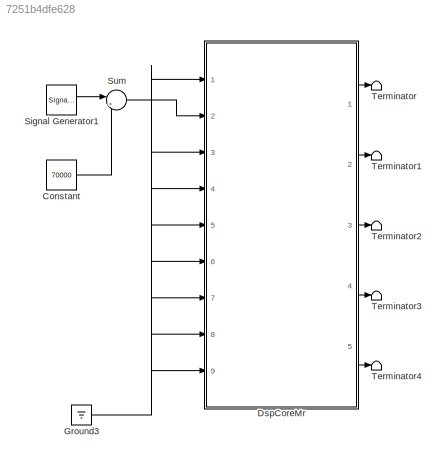
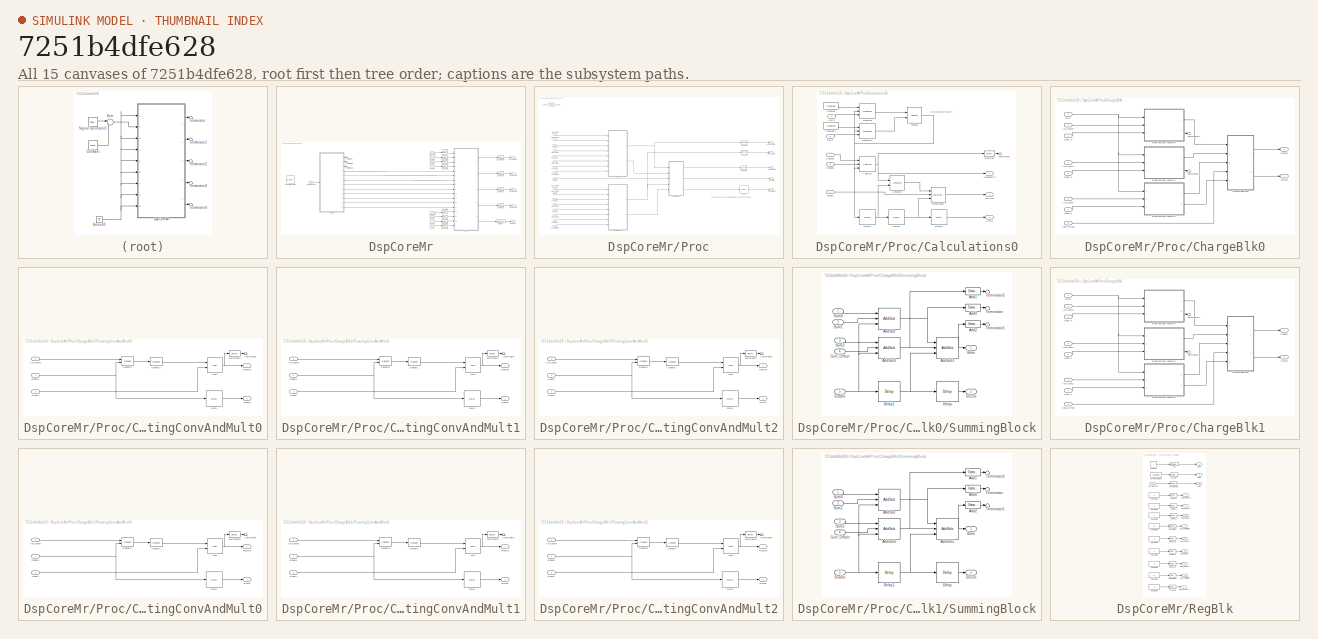
[diagram: thumbnail index - all 15 canvases of the model, root first then tree order]
MODEL slx_7251b4dfe628
KIND model
CONFIG AbsTol = auto
CONFIG FixedStep = auto
CONFIG MaxStep = 10e-6
CONFIG MinStep = auto
CONFIG RelTol = 1e-3
CONFIG SampleTimeConstraint = Unconstrained
CONFIG Solver = ode45
CONFIG SolverMode = Auto
CONFIG SolverName = ode45
CONFIG StartTime = 0.0
CONFIG StopTime = 1
BLOCK [Constant] Constant
  Value = 70000
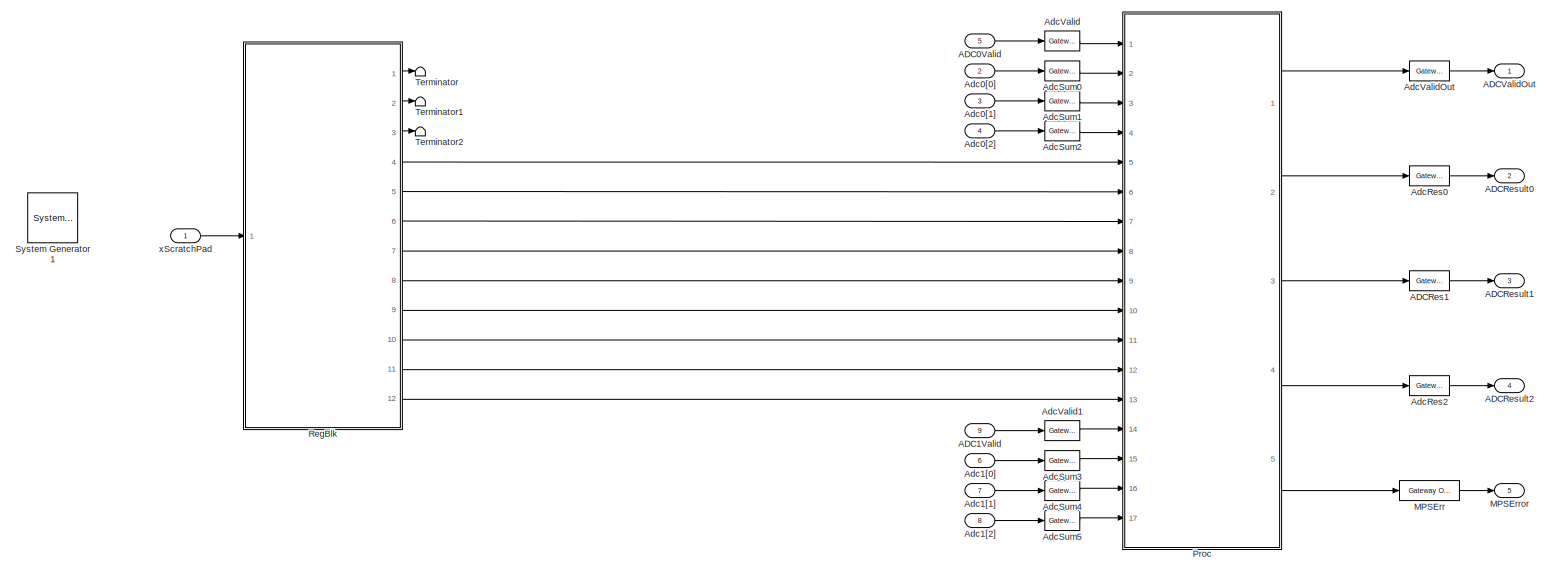
[diagram: DspCoreMr - part 1/1, most of the canvas]
BLOCK [SubSystem] DspCoreMr
  Ports = [9, 5]
  RequestExecContextInheritance = off
  Variant = off
BLOCK [Reference] DspCoreMr/ System Generator1  REF=xbsIndex_r4/ System Generator
  AttributesFormatString = System\nGenerator
  Ports = []
  SourceBlock = xbsIndex_r4/ System Generator
  SourceType = Xilinx System Generator Block
  Tag = genX
  UserDataPersistent = on
BLOCK [Inport] DspCoreMr/ADC0Valid
  IconDisplay = Port number
  Port = 5
BLOCK [Inport] DspCoreMr/ADC1Valid
  IconDisplay = Port number
  Port = 9
BLOCK [Reference] DspCoreMr/ADCRes1  REF=xbsIndex_r4/Gateway Out
  Ports = [1, 1]
  SourceBlock = xbsIndex_r4/Gateway Out
  SourceType = Xilinx Gateway Out Block
BLOCK [Outport] DspCoreMr/ADCResult0
  IconDisplay = Port number
  Port = 2
BLOCK [Outport] DspCoreMr/ADCResult1
  IconDisplay = Port number
  Port = 3
BLOCK [Outport] DspCoreMr/ADCResult2
  IconDisplay = Port number
  Port = 4
BLOCK [Outport] DspCoreMr/ADCValidOut
  IconDisplay = Port number
BLOCK [Inport] DspCoreMr/Adc0[0]
  IconDisplay = Port number
  Port = 2
BLOCK [Inport] DspCoreMr/Adc0[1]
  IconDisplay = Port number
  Port = 3
BLOCK [Inport] DspCoreMr/Adc0[2]
  IconDisplay = Port number
  Port = 4
BLOCK [Inport] DspCoreMr/Adc1[0]
  IconDisplay = Port number
  Port = 6
BLOCK [Inport] DspCoreMr/Adc1[1]
  IconDisplay = Port number
  Port = 7
BLOCK [Inport] DspCoreMr/Adc1[2]
  IconDisplay = Port number
  Port = 8
BLOCK [Reference] DspCoreMr/AdcRes0  REF=xbsIndex_r4/Gateway Out
  Ports = [1, 1]
  SourceBlock = xbsIndex_r4/Gateway Out
  SourceType = Xilinx Gateway Out Block
BLOCK [Reference] DspCoreMr/AdcRes2  REF=xbsIndex_r4/Gateway Out
  Ports = [1, 1]
  SourceBlock = xbsIndex_r4/Gateway Out
  SourceType = Xilinx Gateway Out Block
BLOCK [Reference] DspCoreMr/AdcSum0  REF=xbsIndex_r4/Gateway In
  Ports = [1, 1]
  SourceBlock = xbsIndex_r4/Gateway In
  SourceType = Xilinx Gateway In Block
BLOCK [Reference] DspCoreMr/AdcSum1  REF=xbsIndex_r4/Gateway In
  Ports = [1, 1]
  SourceBlock = xbsIndex_r4/Gateway In
  SourceType = Xilinx Gateway In Block
BLOCK [Reference] DspCoreMr/AdcSum2  REF=xbsIndex_r4/Gateway In
  Ports = [1, 1]
  SourceBlock = xbsIndex_r4/Gateway In
  SourceType = Xilinx Gateway In Block
BLOCK [Reference] DspCoreMr/AdcSum3  REF=xbsIndex_r4/Gateway In
  Ports = [1, 1]
  SourceBlock = xbsIndex_r4/Gateway In
  SourceType = Xilinx Gateway In Block
BLOCK [Reference] DspCoreMr/AdcSum4  REF=xbsIndex_r4/Gateway In
  Ports = [1, 1]
  SourceBlock = xbsIndex_r4/Gateway In
  SourceType = Xilinx Gateway In Block
BLOCK [Reference] DspCoreMr/AdcSum5  REF=xbsIndex_r4/Gateway In
  Ports = [1, 1]
  SourceBlock = xbsIndex_r4/Gateway In
  SourceType = Xilinx Gateway In Block
BLOCK [Reference] DspCoreMr/AdcValid  REF=xbsIndex_r4/Gateway In
  Ports = [1, 1]
  SourceBlock = xbsIndex_r4/Gateway In
  SourceType = Xilinx Gateway In Block
BLOCK [Reference] DspCoreMr/AdcValid1  REF=xbsIndex_r4/Gateway In
  Ports = [1, 1]
  SourceBlock = xbsIndex_r4/Gateway In
  SourceType = Xilinx Gateway In Block
BLOCK [Reference] DspCoreMr/AdcValidOut  REF=xbsIndex_r4/Gateway Out
  Ports = [1, 1]
  SourceBlock = xbsIndex_r4/Gateway Out
  SourceType = Xilinx Gateway Out Block
BLOCK [Reference] DspCoreMr/MPSErr  REF=xbsIndex_r4/Gateway Out
  Ports = [1, 1]
  SourceBlock = xbsIndex_r4/Gateway Out
  SourceType = Xilinx Gateway Out Block
BLOCK [Outport] DspCoreMr/MPSError
  IconDisplay = Port number
  Port = 5
BLOCK [SubSystem] DspCoreMr/Proc
  Ports = [17, 5]
  RequestExecContextInheritance = off
  Variant = off
BLOCK [Inport] DspCoreMr/Proc/ADC0Valid
  IconDisplay = Port number
BLOCK [Inport] DspCoreMr/Proc/ADC0sum0
  IconDisplay = Port number
  Port = 2
BLOCK [Inport] DspCoreMr/Proc/ADC0sum1
  IconDisplay = Port number
  Port = 3
BLOCK [Inport] DspCoreMr/Proc/ADC0sum2
  IconDisplay = Port number
  Port = 4
BLOCK [Inport] DspCoreMr/Proc/ADC1Valid1
  IconDisplay = Port number
  Port = 14
BLOCK [Inport] DspCoreMr/Proc/ADC1sum0 
  IconDisplay = Port number
  Port = 15
BLOCK [Inport] DspCoreMr/Proc/ADC1sum1
  IconDisplay = Port number
  Port = 16
BLOCK [Inport] DspCoreMr/Proc/ADC1sum2
  IconDisplay = Port number
  Port = 17
BLOCK [Outport] DspCoreMr/Proc/ADCResult[0]
  IconDisplay = Port number
  Port = 2
BLOCK [Outport] DspCoreMr/Proc/ADCResult[1]
  IconDisplay = Port number
  Port = 3
BLOCK [Outport] DspCoreMr/Proc/ADCResult[2]
  IconDisplay = Port number
  Port = 4
BLOCK [Outport] DspCoreMr/Proc/ADCValidOut
  IconDisplay = Port number
BLOCK [SubSystem] DspCoreMr/Proc/Calculations0
  Ports = [5, 3]
  RequestExecContextInheritance = off
  Variant = off
BLOCK [Reference] DspCoreMr/Proc/Calculations0/Absolute  REF=xbsIndex_r4/Absolute
  Ports = [2, 1]
  SourceBlock = xbsIndex_r4/Absolute
  SourceType = Xilinx Absolute Block Block
BLOCK [Reference] DspCoreMr/Proc/Calculations0/AddSub  REF=xbsIndex_r4/AddSub
  Ports = [3, 1]
  SourceBlock = xbsIndex_r4/AddSub
  SourceType = Xilinx Adder/Subtracter Block
BLOCK [Inport] DspCoreMr/Proc/Calculations0/Charge0
  IconDisplay = Port number
BLOCK [Inport] DspCoreMr/Proc/Calculations0/Charge1
  IconDisplay = Port number
  Port = 4
BLOCK [Outport] DspCoreMr/Proc/Calculations0/ChargeDiff
  IconDisplay = Port number
BLOCK [Reference] DspCoreMr/Proc/Calculations0/Constant  REF=xbsIndex_r4/Constant
  Ports = [0, 1]
  SourceBlock = xbsIndex_r4/Constant
  SourceType = Xilinx Constant Block Block
BLOCK [Reference] DspCoreMr/Proc/Calculations0/Constant1  REF=xbsIndex_r4/Constant
  Ports = [0, 1]
  SourceBlock = xbsIndex_r4/Constant
  SourceType = Xilinx Constant Block Block
BLOCK [Reference] DspCoreMr/Proc/Calculations0/Delay1  REF=xbsIndex_r4/Delay
  Ports = [1, 1]
  SourceBlock = xbsIndex_r4/Delay
  SourceType = Xilinx Delay Block
BLOCK [Reference] DspCoreMr/Proc/Calculations0/Delay2  REF=xbsIndex_r4/Delay
  Ports = [1, 1]
  SourceBlock = xbsIndex_r4/Delay
  SourceType = Xilinx Delay Block
BLOCK [Reference] DspCoreMr/Proc/Calculations0/Delay3  REF=xbsIndex_r4/Delay
  Ports = [1, 1]
  SourceBlock = xbsIndex_r4/Delay
  SourceType = Xilinx Delay Block
BLOCK [Outport] DspCoreMr/Proc/Calculations0/EnOut
  IconDisplay = Port number
  Port = 3
BLOCK [Inport] DspCoreMr/Proc/Calculations0/EnP0
  IconDisplay = Port number
  Port = 2
BLOCK [Inport] DspCoreMr/Proc/Calculations0/EnP1
  IconDisplay = Port number
  Port = 5
BLOCK [Reference] DspCoreMr/Proc/Calculations0/Logical  REF=xbsIndex_r4/Logical
  Ports = [2, 1]
  SourceBlock = xbsIndex_r4/Logical
  SourceType = Xilinx Logical Block Block
BLOCK [Outport] DspCoreMr/Proc/Calculations0/MPSout
  IconDisplay = Port number
  Port = 2
BLOCK [Reference] DspCoreMr/Proc/Calculations0/Register  REF=xbsIndex_r4/Register
  Ports = [3, 1]
  SourceBlock = xbsIndex_r4/Register
  SourceType = Xilinx Register Block
BLOCK [Reference] DspCoreMr/Proc/Calculations0/Register1  REF=xbsIndex_r4/Register
  Ports = [3, 1]
  SourceBlock = xbsIndex_r4/Register
  SourceType = Xilinx Register Block
BLOCK [Reference] DspCoreMr/Proc/Calculations0/Relational1  REF=xbsIndex_r4/Relational
  Ports = [3, 1]
  SourceBlock = xbsIndex_r4/Relational
  SourceType = Xilinx Arithmetic Relational Operator Block
BLOCK [Reference] DspCoreMr/Proc/Calculations0/SumReg  REF=xbsIndex_r4/Gateway Out
  Ports = [1, 1]
  SourceBlock = xbsIndex_r4/Gateway Out
  SourceType = Xilinx Gateway Out Block
BLOCK [Terminator] DspCoreMr/Proc/Calculations0/Terminator
BLOCK [Inport] DspCoreMr/Proc/Calculations0/Thresh
  IconDisplay = Port number
  Port = 3
BLOCK [SubSystem] DspCoreMr/Proc/ChargeBlk0
  Ports = [8, 2]
  RequestExecContextInheritance = off
  Variant = off
BLOCK [Inport] DspCoreMr/Proc/ChargeBlk0/ADCsum0
  IconDisplay = Port number
  Port = 2
BLOCK [Inport] DspCoreMr/Proc/ChargeBlk0/ADCsum1
  IconDisplay = Port number
  Port = 4
BLOCK [Inport] DspCoreMr/Proc/ChargeBlk0/ADCsum2
  IconDisplay = Port number
  Port = 6
BLOCK [Outport] DspCoreMr/Proc/ChargeBlk0/Charge
  IconDisplay = Port number
BLOCK [Inport] DspCoreMr/Proc/ChargeBlk0/CoefA0
  IconDisplay = Port number
  Port = 3
BLOCK [Inport] DspCoreMr/Proc/ChargeBlk0/CoefA1
  IconDisplay = Port number
  Port = 5
BLOCK [Inport] DspCoreMr/Proc/ChargeBlk0/CoefA2
  IconDisplay = Port number
  Port = 7
BLOCK [Inport] DspCoreMr/Proc/ChargeBlk0/Coef_Offset
  IconDisplay = Port number
  Port = 8
BLOCK [Inport] DspCoreMr/Proc/ChargeBlk0/EnIn
  IconDisplay = Port number
BLOCK [Outport] DspCoreMr/Proc/ChargeBlk0/EnOut
  IconDisplay = Port number
  Port = 2
BLOCK [SubSystem] DspCoreMr/Proc/ChargeBlk0/FloatingConvAndMult0
  Ports = [3, 2]
  RequestExecContextInheritance = off
  Variant = off
BLOCK [Inport] DspCoreMr/Proc/ChargeBlk0/FloatingConvAndMult0/ADCsum0
  IconDisplay = Port number
  Port = 2
BLOCK [Reference] DspCoreMr/Proc/ChargeBlk0/FloatingConvAndMult0/Convert0  REF=xbsIndex_r4/Convert
  Ports = [2, 1]
  SourceBlock = xbsIndex_r4/Convert
  SourceType = Xilinx Type Converter Block
BLOCK [Reference] DspCoreMr/Proc/ChargeBlk0/FloatingConvAndMult0/Convert1  REF=xbsIndex_r4/Convert
  Ports = [1, 1]
  SourceBlock = xbsIndex_r4/Convert
  SourceType = Xilinx Type Converter Block
BLOCK [Reference] DspCoreMr/Proc/ChargeBlk0/FloatingConvAndMult0/Delay  REF=xbsIndex_r4/Delay
  Ports = [1, 1]
  SourceBlock = xbsIndex_r4/Delay
  SourceType = Xilinx Delay Block
BLOCK [Outport] DspCoreMr/Proc/ChargeBlk0/FloatingConvAndMult0/EnOut
  IconDisplay = Port number
  Port = 2
BLOCK [Inport] DspCoreMr/Proc/ChargeBlk0/FloatingConvAndMult0/Enable
  IconDisplay = Port number
  SampleTime = 5.385E-9
BLOCK [Reference] DspCoreMr/Proc/ChargeBlk0/FloatingConvAndMult0/Mult  REF=xbsIndex_r4/Mult
  Ports = [2, 1]
  SourceBlock = xbsIndex_r4/Mult
  SourceType = Xilinx Multiplier Block
BLOCK [Reference] DspCoreMr/Proc/ChargeBlk0/FloatingConvAndMult0/MultResult  REF=xbsIndex_r4/Gateway Out
  Ports = [1, 1]
  SourceBlock = xbsIndex_r4/Gateway Out
  SourceType = Xilinx Gateway Out Block
BLOCK [Outport] DspCoreMr/Proc/ChargeBlk0/FloatingConvAndMult0/ResOut
  IconDisplay = Port number
BLOCK [Inport] DspCoreMr/Proc/ChargeBlk0/FloatingConvAndMult0/ScoefA
  IconDisplay = Port number
  Port = 3
  SampleTime = 5.385E-9
BLOCK [Terminator] DspCoreMr/Proc/ChargeBlk0/FloatingConvAndMult0/Terminator
BLOCK [SubSystem] DspCoreMr/Proc/ChargeBlk0/FloatingConvAndMult1
  Ports = [3, 2]
  RequestExecContextInheritance = off
  Variant = off
BLOCK [Inport] DspCoreMr/Proc/ChargeBlk0/FloatingConvAndMult1/ADCsum0
  IconDisplay = Port number
  Port = 2
BLOCK [Reference] DspCoreMr/Proc/ChargeBlk0/FloatingConvAndMult1/Convert0  REF=xbsIndex_r4/Convert
  Ports = [2, 1]
  SourceBlock = xbsIndex_r4/Convert
  SourceType = Xilinx Type Converter Block
BLOCK [Reference] DspCoreMr/Proc/ChargeBlk0/FloatingConvAndMult1/Convert1  REF=xbsIndex_r4/Convert
  Ports = [1, 1]
  SourceBlock = xbsIndex_r4/Convert
  SourceType = Xilinx Type Converter Block
BLOCK [Reference] DspCoreMr/Proc/ChargeBlk0/FloatingConvAndMult1/Delay  REF=xbsIndex_r4/Delay
  Ports = [1, 1]
  SourceBlock = xbsIndex_r4/Delay
  SourceType = Xilinx Delay Block
BLOCK [Outport] DspCoreMr/Proc/ChargeBlk0/FloatingConvAndMult1/EnOut
  IconDisplay = Port number
  Port = 2
BLOCK [Inport] DspCoreMr/Proc/ChargeBlk0/FloatingConvAndMult1/Enable
  IconDisplay = Port number
  SampleTime = 5.385E-9
BLOCK [Reference] DspCoreMr/Proc/ChargeBlk0/FloatingConvAndMult1/Mult  REF=xbsIndex_r4/Mult
  Ports = [2, 1]
  SourceBlock = xbsIndex_r4/Mult
  SourceType = Xilinx Multiplier Block
BLOCK [Reference] DspCoreMr/Proc/ChargeBlk0/FloatingConvAndMult1/MultResult  REF=xbsIndex_r4/Gateway Out
  Ports = [1, 1]
  SourceBlock = xbsIndex_r4/Gateway Out
  SourceType = Xilinx Gateway Out Block
BLOCK [Outport] DspCoreMr/Proc/ChargeBlk0/FloatingConvAndMult1/ResOut
  IconDisplay = Port number
BLOCK [Inport] DspCoreMr/Proc/ChargeBlk0/FloatingConvAndMult1/ScoefA
  IconDisplay = Port number
  Port = 3
  SampleTime = 5.385E-9
BLOCK [Terminator] DspCoreMr/Proc/ChargeBlk0/FloatingConvAndMult1/Terminator
BLOCK [SubSystem] DspCoreMr/Proc/ChargeBlk0/FloatingConvAndMult2
  Ports = [3, 2]
  RequestExecContextInheritance = off
  Variant = off
BLOCK [Inport] DspCoreMr/Proc/ChargeBlk0/FloatingConvAndMult2/ADCsum0
  IconDisplay = Port number
  Port = 2
BLOCK [Reference] DspCoreMr/Proc/ChargeBlk0/FloatingConvAndMult2/Convert0  REF=xbsIndex_r4/Convert
  Ports = [2, 1]
  SourceBlock = xbsIndex_r4/Convert
  SourceType = Xilinx Type Converter Block
BLOCK [Reference] DspCoreMr/Proc/ChargeBlk0/FloatingConvAndMult2/Convert1  REF=xbsIndex_r4/Convert
  Ports = [1, 1]
  SourceBlock = xbsIndex_r4/Convert
  SourceType = Xilinx Type Converter Block
BLOCK [Reference] DspCoreMr/Proc/ChargeBlk0/FloatingConvAndMult2/Delay  REF=xbsIndex_r4/Delay
  Ports = [1, 1]
  SourceBlock = xbsIndex_r4/Delay
  SourceType = Xilinx Delay Block
BLOCK [Outport] DspCoreMr/Proc/ChargeBlk0/FloatingConvAndMult2/EnOut
  IconDisplay = Port number
  Port = 2
BLOCK [Inport] DspCoreMr/Proc/ChargeBlk0/FloatingConvAndMult2/Enable
  IconDisplay = Port number
  SampleTime = 5.385E-9
BLOCK [Reference] DspCoreMr/Proc/ChargeBlk0/FloatingConvAndMult2/Mult  REF=xbsIndex_r4/Mult
  Ports = [2, 1]
  SourceBlock = xbsIndex_r4/Mult
  SourceType = Xilinx Multiplier Block
BLOCK [Reference] DspCoreMr/Proc/ChargeBlk0/FloatingConvAndMult2/MultResult  REF=xbsIndex_r4/Gateway Out
  Ports = [1, 1]
  SourceBlock = xbsIndex_r4/Gateway Out
  SourceType = Xilinx Gateway Out Block
BLOCK [Outport] DspCoreMr/Proc/ChargeBlk0/FloatingConvAndMult2/ResOut
  IconDisplay = Port number
BLOCK [Inport] DspCoreMr/Proc/ChargeBlk0/FloatingConvAndMult2/ScoefA
  IconDisplay = Port number
  Port = 3
  SampleTime = 5.385E-9
BLOCK [Terminator] DspCoreMr/Proc/ChargeBlk0/FloatingConvAndMult2/Terminator
BLOCK [SubSystem] DspCoreMr/Proc/ChargeBlk0/SummingBlock
  Ports = [5, 2]
  RequestExecContextInheritance = off
  Variant = off
BLOCK [Reference] DspCoreMr/Proc/ChargeBlk0/SummingBlock/Add0  REF=xbsIndex_r4/Gateway Out
  Ports = [1, 1]
  SourceBlock = xbsIndex_r4/Gateway Out
  SourceType = Xilinx Gateway Out Block
BLOCK [Reference] DspCoreMr/Proc/ChargeBlk0/SummingBlock/Add1  REF=xbsIndex_r4/Gateway Out
  Ports = [1, 1]
  SourceBlock = xbsIndex_r4/Gateway Out
  SourceType = Xilinx Gateway Out Block
BLOCK [Reference] DspCoreMr/Proc/ChargeBlk0/SummingBlock/Add2  REF=xbsIndex_r4/Gateway Out
  Ports = [1, 1]
  SourceBlock = xbsIndex_r4/Gateway Out
  SourceType = Xilinx Gateway Out Block
BLOCK [Reference] DspCoreMr/Proc/ChargeBlk0/SummingBlock/AddSub  REF=xbsIndex_r4/AddSub
  Ports = [3, 1]
  SourceBlock = xbsIndex_r4/AddSub
  SourceType = Xilinx Adder/Subtracter Block
BLOCK [Reference] DspCoreMr/Proc/ChargeBlk0/SummingBlock/AddSub1  REF=xbsIndex_r4/AddSub
  Ports = [3, 1]
  SourceBlock = xbsIndex_r4/AddSub
  SourceType = Xilinx Adder/Subtracter Block
BLOCK [Reference] DspCoreMr/Proc/ChargeBlk0/SummingBlock/AddSub2  REF=xbsIndex_r4/AddSub
  Ports = [3, 1]
  SourceBlock = xbsIndex_r4/AddSub
  SourceType = Xilinx Adder/Subtracter Block
BLOCK [Outport] DspCoreMr/Proc/ChargeBlk0/SummingBlock/Braw
  IconDisplay = Port number
BLOCK [Inport] DspCoreMr/Proc/ChargeBlk0/SummingBlock/Coef_Offset
  IconDisplay = Port number
  Port = 4
BLOCK [Reference] DspCoreMr/Proc/ChargeBlk0/SummingBlock/Delay  REF=xbsIndex_r4/Delay
  Ports = [1, 1]
  SourceBlock = xbsIndex_r4/Delay
  SourceType = Xilinx Delay Block
BLOCK [Reference] DspCoreMr/Proc/ChargeBlk0/SummingBlock/Delay1  REF=xbsIndex_r4/Delay
  Ports = [1, 1]
  SourceBlock = xbsIndex_r4/Delay
  SourceType = Xilinx Delay Block
BLOCK [Outport] DspCoreMr/Proc/ChargeBlk0/SummingBlock/EnOut
  IconDisplay = Port number
  Port = 2
BLOCK [Inport] DspCoreMr/Proc/ChargeBlk0/SummingBlock/Enable
  IconDisplay = Port number
  Port = 5
BLOCK [Inport] DspCoreMr/Proc/ChargeBlk0/SummingBlock/Sum0
  IconDisplay = Port number
BLOCK [Inport] DspCoreMr/Proc/ChargeBlk0/SummingBlock/Sum1
  IconDisplay = Port number
  Port = 2
BLOCK [Inport] DspCoreMr/Proc/ChargeBlk0/SummingBlock/Sum2
  IconDisplay = Port number
  Port = 3
BLOCK [Terminator] DspCoreMr/Proc/ChargeBlk0/SummingBlock/Terminator
BLOCK [Terminator] DspCoreMr/Proc/ChargeBlk0/SummingBlock/Terminator1
BLOCK [Terminator] DspCoreMr/Proc/ChargeBlk0/SummingBlock/Terminator2
BLOCK [Terminator] DspCoreMr/Proc/ChargeBlk0/Terminator1
BLOCK [Terminator] DspCoreMr/Proc/ChargeBlk0/Terminator3
BLOCK [SubSystem] DspCoreMr/Proc/ChargeBlk1
  Ports = [8, 2]
  RequestExecContextInheritance = off
  Variant = off
BLOCK [Inport] DspCoreMr/Proc/ChargeBlk1/ADCsum0
  IconDisplay = Port number
  Port = 2
BLOCK [Inport] DspCoreMr/Proc/ChargeBlk1/ADCsum1
  IconDisplay = Port number
  Port = 4
BLOCK [Inport] DspCoreMr/Proc/ChargeBlk1/ADCsum2
  IconDisplay = Port number
  Port = 6
BLOCK [Outport] DspCoreMr/Proc/ChargeBlk1/Charge
  IconDisplay = Port number
BLOCK [Inport] DspCoreMr/Proc/ChargeBlk1/CoefA0
  IconDisplay = Port number
  Port = 3
BLOCK [Inport] DspCoreMr/Proc/ChargeBlk1/CoefA1
  IconDisplay = Port number
  Port = 5
BLOCK [Inport] DspCoreMr/Proc/ChargeBlk1/CoefA2
  IconDisplay = Port number
  Port = 7
BLOCK [Inport] DspCoreMr/Proc/ChargeBlk1/Coef_Offset
  IconDisplay = Port number
  Port = 8
BLOCK [Inport] DspCoreMr/Proc/ChargeBlk1/EnIn
  IconDisplay = Port number
BLOCK [Outport] DspCoreMr/Proc/ChargeBlk1/EnOut
  IconDisplay = Port number
  Port = 2
BLOCK [SubSystem] DspCoreMr/Proc/ChargeBlk1/FloatingConvAndMult0
  Ports = [3, 2]
  RequestExecContextInheritance = off
  Variant = off
BLOCK [Inport] DspCoreMr/Proc/ChargeBlk1/FloatingConvAndMult0/ADCsum0
  IconDisplay = Port number
  Port = 2
BLOCK [Reference] DspCoreMr/Proc/ChargeBlk1/FloatingConvAndMult0/Convert0  REF=xbsIndex_r4/Convert
  Ports = [2, 1]
  SourceBlock = xbsIndex_r4/Convert
  SourceType = Xilinx Type Converter Block
BLOCK [Reference] DspCoreMr/Proc/ChargeBlk1/FloatingConvAndMult0/Convert1  REF=xbsIndex_r4/Convert
  Ports = [1, 1]
  SourceBlock = xbsIndex_r4/Convert
  SourceType = Xilinx Type Converter Block
BLOCK [Reference] DspCoreMr/Proc/ChargeBlk1/FloatingConvAndMult0/Delay  REF=xbsIndex_r4/Delay
  Ports = [1, 1]
  SourceBlock = xbsIndex_r4/Delay
  SourceType = Xilinx Delay Block
BLOCK [Outport] DspCoreMr/Proc/ChargeBlk1/FloatingConvAndMult0/EnOut
  IconDisplay = Port number
  Port = 2
BLOCK [Inport] DspCoreMr/Proc/ChargeBlk1/FloatingConvAndMult0/Enable
  IconDisplay = Port number
  SampleTime = 5.385E-9
BLOCK [Reference] DspCoreMr/Proc/ChargeBlk1/FloatingConvAndMult0/Mult  REF=xbsIndex_r4/Mult
  Ports = [2, 1]
  SourceBlock = xbsIndex_r4/Mult
  SourceType = Xilinx Multiplier Block
BLOCK [Reference] DspCoreMr/Proc/ChargeBlk1/FloatingConvAndMult0/MultResult  REF=xbsIndex_r4/Gateway Out
  Ports = [1, 1]
  SourceBlock = xbsIndex_r4/Gateway Out
  SourceType = Xilinx Gateway Out Block
BLOCK [Outport] DspCoreMr/Proc/ChargeBlk1/FloatingConvAndMult0/ResOut
  IconDisplay = Port number
BLOCK [Inport] DspCoreMr/Proc/ChargeBlk1/FloatingConvAndMult0/ScoefA
  IconDisplay = Port number
  Port = 3
  SampleTime = 5.385E-9
BLOCK [Terminator] DspCoreMr/Proc/ChargeBlk1/FloatingConvAndMult0/Terminator
BLOCK [SubSystem] DspCoreMr/Proc/ChargeBlk1/FloatingConvAndMult1
  Ports = [3, 2]
  RequestExecContextInheritance = off
  Variant = off
BLOCK [Inport] DspCoreMr/Proc/ChargeBlk1/FloatingConvAndMult1/ADCsum0
  IconDisplay = Port number
  Port = 2
BLOCK [Reference] DspCoreMr/Proc/ChargeBlk1/FloatingConvAndMult1/Convert0  REF=xbsIndex_r4/Convert
  Ports = [2, 1]
  SourceBlock = xbsIndex_r4/Convert
  SourceType = Xilinx Type Converter Block
BLOCK [Reference] DspCoreMr/Proc/ChargeBlk1/FloatingConvAndMult1/Convert1  REF=xbsIndex_r4/Convert
  Ports = [1, 1]
  SourceBlock = xbsIndex_r4/Convert
  SourceType = Xilinx Type Converter Block
BLOCK [Reference] DspCoreMr/Proc/ChargeBlk1/FloatingConvAndMult1/Delay  REF=xbsIndex_r4/Delay
  Ports = [1, 1]
  SourceBlock = xbsIndex_r4/Delay
  SourceType = Xilinx Delay Block
BLOCK [Outport] DspCoreMr/Proc/ChargeBlk1/FloatingConvAndMult1/EnOut
  IconDisplay = Port number
  Port = 2
BLOCK [Inport] DspCoreMr/Proc/ChargeBlk1/FloatingConvAndMult1/Enable
  IconDisplay = Port number
  SampleTime = 5.385E-9
BLOCK [Reference] DspCoreMr/Proc/ChargeBlk1/FloatingConvAndMult1/Mult  REF=xbsIndex_r4/Mult
  Ports = [2, 1]
  SourceBlock = xbsIndex_r4/Mult
  SourceType = Xilinx Multiplier Block
BLOCK [Reference] DspCoreMr/Proc/ChargeBlk1/FloatingConvAndMult1/MultResult  REF=xbsIndex_r4/Gateway Out
  Ports = [1, 1]
  SourceBlock = xbsIndex_r4/Gateway Out
  SourceType = Xilinx Gateway Out Block
BLOCK [Outport] DspCoreMr/Proc/ChargeBlk1/FloatingConvAndMult1/ResOut
  IconDisplay = Port number
BLOCK [Inport] DspCoreMr/Proc/ChargeBlk1/FloatingConvAndMult1/ScoefA
  IconDisplay = Port number
  Port = 3
  SampleTime = 5.385E-9
BLOCK [Terminator] DspCoreMr/Proc/ChargeBlk1/FloatingConvAndMult1/Terminator
BLOCK [SubSystem] DspCoreMr/Proc/ChargeBlk1/FloatingConvAndMult2
  Ports = [3, 2]
  RequestExecContextInheritance = off
  Variant = off
BLOCK [Inport] DspCoreMr/Proc/ChargeBlk1/FloatingConvAndMult2/ADCsum0
  IconDisplay = Port number
  Port = 2
BLOCK [Reference] DspCoreMr/Proc/ChargeBlk1/FloatingConvAndMult2/Convert0  REF=xbsIndex_r4/Convert
  Ports = [2, 1]
  SourceBlock = xbsIndex_r4/Convert
  SourceType = Xilinx Type Converter Block
BLOCK [Reference] DspCoreMr/Proc/ChargeBlk1/FloatingConvAndMult2/Convert1  REF=xbsIndex_r4/Convert
  Ports = [1, 1]
  SourceBlock = xbsIndex_r4/Convert
  SourceType = Xilinx Type Converter Block
BLOCK [Reference] DspCoreMr/Proc/ChargeBlk1/FloatingConvAndMult2/Delay  REF=xbsIndex_r4/Delay
  Ports = [1, 1]
  SourceBlock = xbsIndex_r4/Delay
  SourceType = Xilinx Delay Block
BLOCK [Outport] DspCoreMr/Proc/ChargeBlk1/FloatingConvAndMult2/EnOut
  IconDisplay = Port number
  Port = 2
BLOCK [Inport] DspCoreMr/Proc/ChargeBlk1/FloatingConvAndMult2/Enable
  IconDisplay = Port number
  SampleTime = 5.385E-9
BLOCK [Reference] DspCoreMr/Proc/ChargeBlk1/FloatingConvAndMult2/Mult  REF=xbsIndex_r4/Mult
  Ports = [2, 1]
  SourceBlock = xbsIndex_r4/Mult
  SourceType = Xilinx Multiplier Block
BLOCK [Reference] DspCoreMr/Proc/ChargeBlk1/FloatingConvAndMult2/MultResult  REF=xbsIndex_r4/Gateway Out
  Ports = [1, 1]
  SourceBlock = xbsIndex_r4/Gateway Out
  SourceType = Xilinx Gateway Out Block
BLOCK [Outport] DspCoreMr/Proc/ChargeBlk1/FloatingConvAndMult2/ResOut
  IconDisplay = Port number
BLOCK [Inport] DspCoreMr/Proc/ChargeBlk1/FloatingConvAndMult2/ScoefA
  IconDisplay = Port number
  Port = 3
  SampleTime = 5.385E-9
BLOCK [Terminator] DspCoreMr/Proc/ChargeBlk1/FloatingConvAndMult2/Terminator
BLOCK [SubSystem] DspCoreMr/Proc/ChargeBlk1/SummingBlock
  Ports = [5, 2]
  RequestExecContextInheritance = off
  Variant = off
BLOCK [Reference] DspCoreMr/Proc/ChargeBlk1/SummingBlock/Add0  REF=xbsIndex_r4/Gateway Out
  Ports = [1, 1]
  SourceBlock = xbsIndex_r4/Gateway Out
  SourceType = Xilinx Gateway Out Block
BLOCK [Reference] DspCoreMr/Proc/ChargeBlk1/SummingBlock/Add1  REF=xbsIndex_r4/Gateway Out
  Ports = [1, 1]
  SourceBlock = xbsIndex_r4/Gateway Out
  SourceType = Xilinx Gateway Out Block
BLOCK [Reference] DspCoreMr/Proc/ChargeBlk1/SummingBlock/Add2  REF=xbsIndex_r4/Gateway Out
  Ports = [1, 1]
  SourceBlock = xbsIndex_r4/Gateway Out
  SourceType = Xilinx Gateway Out Block
BLOCK [Reference] DspCoreMr/Proc/ChargeBlk1/SummingBlock/AddSub  REF=xbsIndex_r4/AddSub
  Ports = [3, 1]
  SourceBlock = xbsIndex_r4/AddSub
  SourceType = Xilinx Adder/Subtracter Block
BLOCK [Reference] DspCoreMr/Proc/ChargeBlk1/SummingBlock/AddSub1  REF=xbsIndex_r4/AddSub
  Ports = [3, 1]
  SourceBlock = xbsIndex_r4/AddSub
  SourceType = Xilinx Adder/Subtracter Block
BLOCK [Reference] DspCoreMr/Proc/ChargeBlk1/SummingBlock/AddSub2  REF=xbsIndex_r4/AddSub
  Ports = [3, 1]
  SourceBlock = xbsIndex_r4/AddSub
  SourceType = Xilinx Adder/Subtracter Block
BLOCK [Outport] DspCoreMr/Proc/ChargeBlk1/SummingBlock/Braw
  IconDisplay = Port number
BLOCK [Inport] DspCoreMr/Proc/ChargeBlk1/SummingBlock/Coef_Offset
  IconDisplay = Port number
  Port = 4
BLOCK [Reference] DspCoreMr/Proc/ChargeBlk1/SummingBlock/Delay  REF=xbsIndex_r4/Delay
  Ports = [1, 1]
  SourceBlock = xbsIndex_r4/Delay
  SourceType = Xilinx Delay Block
BLOCK [Reference] DspCoreMr/Proc/ChargeBlk1/SummingBlock/Delay1  REF=xbsIndex_r4/Delay
  Ports = [1, 1]
  SourceBlock = xbsIndex_r4/Delay
  SourceType = Xilinx Delay Block
BLOCK [Outport] DspCoreMr/Proc/ChargeBlk1/SummingBlock/EnOut
  IconDisplay = Port number
  Port = 2
BLOCK [Inport] DspCoreMr/Proc/ChargeBlk1/SummingBlock/Enable
  IconDisplay = Port number
  Port = 5
BLOCK [Inport] DspCoreMr/Proc/ChargeBlk1/SummingBlock/Sum0
  IconDisplay = Port number
BLOCK [Inport] DspCoreMr/Proc/ChargeBlk1/SummingBlock/Sum1
  IconDisplay = Port number
  Port = 2
BLOCK [Inport] DspCoreMr/Proc/ChargeBlk1/SummingBlock/Sum2
  IconDisplay = Port number
  Port = 3
BLOCK [Terminator] DspCoreMr/Proc/ChargeBlk1/SummingBlock/Terminator
BLOCK [Terminator] DspCoreMr/Proc/ChargeBlk1/SummingBlock/Terminator1
BLOCK [Terminator] DspCoreMr/Proc/ChargeBlk1/SummingBlock/Terminator2
BLOCK [Terminator] DspCoreMr/Proc/ChargeBlk1/Terminator1
BLOCK [Terminator] DspCoreMr/Proc/ChargeBlk1/Terminator3
BLOCK [Inport] DspCoreMr/Proc/Coef_Offset0
  IconDisplay = Port number
  Port = 8
  SampleTime = 5.385E-9
BLOCK [Inport] DspCoreMr/Proc/Coef_Offset1
  IconDisplay = Port number
  Port = 13
  SampleTime = 5.385E-9
BLOCK [Reference] DspCoreMr/Proc/Convert0  REF=xbsIndex_r4/Convert
  Ports = [1, 1]
  SourceBlock = xbsIndex_r4/Convert
  SourceType = Xilinx Type Converter Block
BLOCK [Reference] DspCoreMr/Proc/Convert1  REF=xbsIndex_r4/Convert
  Ports = [1, 1]
  SourceBlock = xbsIndex_r4/Convert
  SourceType = Xilinx Type Converter Block
BLOCK [Reference] DspCoreMr/Proc/Convert2  REF=xbsIndex_r4/Convert
  Ports = [1, 1]
  SourceBlock = xbsIndex_r4/Convert
  SourceType = Xilinx Type Converter Block
BLOCK [Reference] DspCoreMr/Proc/Delay  REF=xbsIndex_r4/Delay
  Ports = [1, 1]
  SourceBlock = xbsIndex_r4/Delay
  SourceType = Xilinx Delay Block
BLOCK [Outport] DspCoreMr/Proc/MPSError
  IconDisplay = Port number
  Port = 5
BLOCK [Inport] DspCoreMr/Proc/Scoef0A0
  IconDisplay = Port number
  Port = 5
  SampleTime = 5.385E-9
BLOCK [Inport] DspCoreMr/Proc/Scoef0A1
  IconDisplay = Port number
  Port = 6
  SampleTime = 5.385E-9
BLOCK [Inport] DspCoreMr/Proc/Scoef0A2
  IconDisplay = Port number
  Port = 7
  SampleTime = 5.385E-9
BLOCK [Inport] DspCoreMr/Proc/Scoef1A0 
  IconDisplay = Port number
  Port = 10
  SampleTime = 5.385E-9
BLOCK [Inport] DspCoreMr/Proc/Scoef1A1
  IconDisplay = Port number
  Port = 11
  SampleTime = 5.385E-9
BLOCK [Inport] DspCoreMr/Proc/Scoef1A2
  IconDisplay = Port number
  Port = 12
  SampleTime = 5.385E-9
BLOCK [Inport] DspCoreMr/Proc/Thresh
  IconDisplay = Port number
  Port = 9
  SampleTime = 5.385E-9
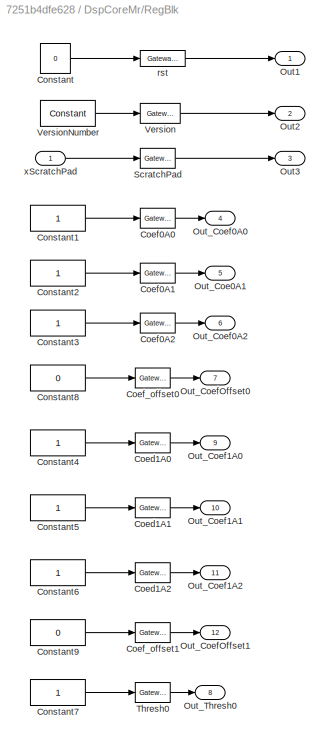
BLOCK [SubSystem] DspCoreMr/RegBlk
  Ports = [1, 12]
  RequestExecContextInheritance = off
  Variant = off
BLOCK [Reference] DspCoreMr/RegBlk/Coed1A0  REF=xbsIndex_r4/Gateway In
  Ports = [1, 1]
  SourceBlock = xbsIndex_r4/Gateway In
  SourceType = Xilinx Gateway In Block
BLOCK [Reference] DspCoreMr/RegBlk/Coed1A1  REF=xbsIndex_r4/Gateway In
  Ports = [1, 1]
  SourceBlock = xbsIndex_r4/Gateway In
  SourceType = Xilinx Gateway In Block
BLOCK [Reference] DspCoreMr/RegBlk/Coed1A2  REF=xbsIndex_r4/Gateway In
  Ports = [1, 1]
  SourceBlock = xbsIndex_r4/Gateway In
  SourceType = Xilinx Gateway In Block
BLOCK [Reference] DspCoreMr/RegBlk/Coef0A0  REF=xbsIndex_r4/Gateway In
  Ports = [1, 1]
  SourceBlock = xbsIndex_r4/Gateway In
  SourceType = Xilinx Gateway In Block
BLOCK [Reference] DspCoreMr/RegBlk/Coef0A1  REF=xbsIndex_r4/Gateway In
  Ports = [1, 1]
  SourceBlock = xbsIndex_r4/Gateway In
  SourceType = Xilinx Gateway In Block
BLOCK [Reference] DspCoreMr/RegBlk/Coef0A2  REF=xbsIndex_r4/Gateway In
  Ports = [1, 1]
  SourceBlock = xbsIndex_r4/Gateway In
  SourceType = Xilinx Gateway In Block
BLOCK [Reference] DspCoreMr/RegBlk/Coef_offset0  REF=xbsIndex_r4/Gateway In
  Ports = [1, 1]
  SourceBlock = xbsIndex_r4/Gateway In
  SourceType = Xilinx Gateway In Block
BLOCK [Reference] DspCoreMr/RegBlk/Coef_offset1  REF=xbsIndex_r4/Gateway In
  Ports = [1, 1]
  SourceBlock = xbsIndex_r4/Gateway In
  SourceType = Xilinx Gateway In Block
BLOCK [Constant] DspCoreMr/RegBlk/Constant
  Value = 0
BLOCK [Constant] DspCoreMr/RegBlk/Constant1
BLOCK [Constant] DspCoreMr/RegBlk/Constant2
BLOCK [Constant] DspCoreMr/RegBlk/Constant3
BLOCK [Constant] DspCoreMr/RegBlk/Constant4
BLOCK [Constant] DspCoreMr/RegBlk/Constant5
BLOCK [Constant] DspCoreMr/RegBlk/Constant6
BLOCK [Constant] DspCoreMr/RegBlk/Constant7
BLOCK [Constant] DspCoreMr/RegBlk/Constant8
  Value = 0
BLOCK [Constant] DspCoreMr/RegBlk/Constant9
  Value = 0
BLOCK [Outport] DspCoreMr/RegBlk/Out1
  IconDisplay = Port number
BLOCK [Outport] DspCoreMr/RegBlk/Out2
  IconDisplay = Port number
  Port = 2
BLOCK [Outport] DspCoreMr/RegBlk/Out3
  IconDisplay = Port number
  Port = 3
BLOCK [Outport] DspCoreMr/RegBlk/Out_Coe0A1
  IconDisplay = Port number
  Port = 5
BLOCK [Outport] DspCoreMr/RegBlk/Out_Coef0A0
  IconDisplay = Port number
  Port = 4
BLOCK [Outport] DspCoreMr/RegBlk/Out_Coef0A2
  IconDisplay = Port number
  Port = 6
BLOCK [Outport] DspCoreMr/RegBlk/Out_Coef1A0
  IconDisplay = Port number
  Port = 9
BLOCK [Outport] DspCoreMr/RegBlk/Out_Coef1A1
  IconDisplay = Port number
  Port = 10
BLOCK [Outport] DspCoreMr/RegBlk/Out_Coef1A2
  IconDisplay = Port number
  Port = 11
BLOCK [Outport] DspCoreMr/RegBlk/Out_CoefOffset0
  IconDisplay = Port number
  Port = 7
BLOCK [Outport] DspCoreMr/RegBlk/Out_CoefOffset1
  IconDisplay = Port number
  Port = 12
BLOCK [Outport] DspCoreMr/RegBlk/Out_Thresh0
  IconDisplay = Port number
  Port = 8
BLOCK [Reference] DspCoreMr/RegBlk/ScratchPad  REF=xbsIndex_r4/Gateway In
  Ports = [1, 1]
  SourceBlock = xbsIndex_r4/Gateway In
  SourceType = Xilinx Gateway In Block
BLOCK [Reference] DspCoreMr/RegBlk/Thresh0  REF=xbsIndex_r4/Gateway In
  Ports = [1, 1]
  SourceBlock = xbsIndex_r4/Gateway In
  SourceType = Xilinx Gateway In Block
BLOCK [Reference] DspCoreMr/RegBlk/Version  REF=xbsIndex_r4/Gateway Out
  Ports = [1, 1]
  SourceBlock = xbsIndex_r4/Gateway Out
  SourceType = Xilinx Gateway Out Block
BLOCK [Reference] DspCoreMr/RegBlk/VersionNumber  REF=xbsIndex_r4/Constant
  Ports = [0, 1]
  SourceBlock = xbsIndex_r4/Constant
  SourceType = Xilinx Constant Block Block
BLOCK [Reference] DspCoreMr/RegBlk/rst  REF=xbsIndex_r4/Gateway In
  Ports = [1, 1]
  SourceBlock = xbsIndex_r4/Gateway In
  SourceType = Xilinx Gateway In Block
BLOCK [Inport] DspCoreMr/RegBlk/xScratchPad
  IconDisplay = Port number
BLOCK [Terminator] DspCoreMr/Terminator
BLOCK [Terminator] DspCoreMr/Terminator1
BLOCK [Terminator] DspCoreMr/Terminator2
BLOCK [Inport] DspCoreMr/xScratchPad
  IconDisplay = Port number
BLOCK [Ground] Ground3
BLOCK [SignalGenerator] Signal Generator1
  Amplitude = 65000
  Frequency = 1E+6
  Ports = [0, 1]
  Units = rad/sec
BLOCK [Sum] Sum
  IconShape = round
  InputSameDT = off
  Inputs = |++
  OutDataTypeStr = Inherit: Inherit via internal rule
  Ports = [2, 1]
  SaturateOnIntegerOverflow = off
BLOCK [Terminator] Terminator
BLOCK [Terminator] Terminator1
BLOCK [Terminator] Terminator2
BLOCK [Terminator] Terminator3
BLOCK [Terminator] Terminator4
ANNOTATION DspCoreMr/Proc: ADC Inputs 32-bits (2x 16-bit ADCs per word) 371 MSPS
ANNOTATION DspCoreMr/Proc: one extra delay to make sure that data from both JESD are available
ANNOTATION DspCoreMr/Proc/Calculations0: To alignenable enables
LINE Constant:1 -> Sum:2
LINE DspCoreMr/ADC0Valid:1 -> DspCoreMr/AdcValid:1
LINE DspCoreMr/ADC1Valid:1 -> DspCoreMr/AdcValid1:1
LINE DspCoreMr/ADCRes1:1 -> DspCoreMr/ADCResult1:1
LINE DspCoreMr/Adc0[0]:1 -> DspCoreMr/AdcSum0:1
LINE DspCoreMr/Adc0[1]:1 -> DspCoreMr/AdcSum1:1
LINE DspCoreMr/Adc0[2]:1 -> DspCoreMr/AdcSum2:1
LINE DspCoreMr/Adc1[0]:1 -> DspCoreMr/AdcSum3:1
LINE DspCoreMr/Adc1[1]:1 -> DspCoreMr/AdcSum4:1
LINE DspCoreMr/Adc1[2]:1 -> DspCoreMr/AdcSum5:1
LINE DspCoreMr/AdcRes0:1 -> DspCoreMr/ADCResult0:1
LINE DspCoreMr/AdcRes2:1 -> DspCoreMr/ADCResult2:1
LINE DspCoreMr/AdcSum0:1 -> DspCoreMr/Proc:2
LINE DspCoreMr/AdcSum1:1 -> DspCoreMr/Proc:3
LINE DspCoreMr/AdcSum2:1 -> DspCoreMr/Proc:4
LINE DspCoreMr/AdcSum3:1 -> DspCoreMr/Proc:15
LINE DspCoreMr/AdcSum4:1 -> DspCoreMr/Proc:16
LINE DspCoreMr/AdcSum5:1 -> DspCoreMr/Proc:17
LINE DspCoreMr/AdcValid1:1 -> DspCoreMr/Proc:14
LINE DspCoreMr/AdcValid:1 -> DspCoreMr/Proc:1
LINE DspCoreMr/AdcValidOut:1 -> DspCoreMr/ADCValidOut:1
LINE DspCoreMr/MPSErr:1 -> DspCoreMr/MPSError:1
LINE DspCoreMr/Proc/ADC0Valid:1 -> DspCoreMr/Proc/ChargeBlk0:1
LINE DspCoreMr/Proc/ADC0sum0:1 -> DspCoreMr/Proc/ChargeBlk0:2
LINE DspCoreMr/Proc/ADC0sum1:1 -> DspCoreMr/Proc/ChargeBlk0:4
LINE DspCoreMr/Proc/ADC0sum2:1 -> DspCoreMr/Proc/ChargeBlk0:6
LINE DspCoreMr/Proc/ADC1Valid1:1 -> DspCoreMr/Proc/ChargeBlk1:1
LINE DspCoreMr/Proc/ADC1sum0 :1 -> DspCoreMr/Proc/ChargeBlk1:2
LINE DspCoreMr/Proc/ADC1sum1:1 -> DspCoreMr/Proc/ChargeBlk1:4
LINE DspCoreMr/Proc/ADC1sum2:1 -> DspCoreMr/Proc/ChargeBlk1:6
LINE DspCoreMr/Proc/Calculations0/Absolute:1 -> DspCoreMr/Proc/Calculations0/Relational1:1
NET DspCoreMr/Proc/Calculations0/AddSub:1 -> DspCoreMr/Proc/Calculations0/Absolute:1, DspCoreMr/Proc/Calculations0/ChargeDiff:1, DspCoreMr/Proc/Calculations0/SumReg:1
LINE DspCoreMr/Proc/Calculations0/Charge0:1 -> DspCoreMr/Proc/Calculations0/AddSub:1
LINE DspCoreMr/Proc/Calculations0/Charge1:1 -> DspCoreMr/Proc/Calculations0/AddSub:2
LINE DspCoreMr/Proc/Calculations0/Constant1:1 -> DspCoreMr/Proc/Calculations0/Register1:1
LINE DspCoreMr/Proc/Calculations0/Constant:1 -> DspCoreMr/Proc/Calculations0/Register:1
NET DspCoreMr/Proc/Calculations0/Delay1:1 -> DspCoreMr/Proc/Calculations0/Absolute:2, DspCoreMr/Proc/Calculations0/Delay2:1
NET DspCoreMr/Proc/Calculations0/Delay2:1 -> DspCoreMr/Proc/Calculations0/Delay3:1, DspCoreMr/Proc/Calculations0/Relational1:3
LINE DspCoreMr/Proc/Calculations0/Delay3:1 -> DspCoreMr/Proc/Calculations0/EnOut:1
LINE DspCoreMr/Proc/Calculations0/EnP0:1 -> DspCoreMr/Proc/Calculations0/Register:3
LINE DspCoreMr/Proc/Calculations0/EnP1:1 -> DspCoreMr/Proc/Calculations0/Register1:3
NET DspCoreMr/Proc/Calculations0/Logical:1 -> DspCoreMr/Proc/Calculations0/AddSub:3, DspCoreMr/Proc/Calculations0/Delay1:1, DspCoreMr/Proc/Calculations0/Register1:2, DspCoreMr/Proc/Calculations0/Register:2
LINE DspCoreMr/Proc/Calculations0/Register1:1 -> DspCoreMr/Proc/Calculations0/Logical:2
LINE DspCoreMr/Proc/Calculations0/Register:1 -> DspCoreMr/Proc/Calculations0/Logical:1
LINE DspCoreMr/Proc/Calculations0/Relational1:1 -> DspCoreMr/Proc/Calculations0/MPSout:1
LINE DspCoreMr/Proc/Calculations0/SumReg:1 -> DspCoreMr/Proc/Calculations0/Terminator:1
LINE DspCoreMr/Proc/Calculations0/Thresh:1 -> DspCoreMr/Proc/Calculations0/Relational1:2
LINE DspCoreMr/Proc/Calculations0:1 -> DspCoreMr/Proc/Convert1:1
LINE DspCoreMr/Proc/Calculations0:2 -> DspCoreMr/Proc/MPSError:1
LINE DspCoreMr/Proc/Calculations0:3 -> DspCoreMr/Proc/Delay:1
LINE DspCoreMr/Proc/ChargeBlk0/ADCsum0:1 -> DspCoreMr/Proc/ChargeBlk0/FloatingConvAndMult0:2
LINE DspCoreMr/Proc/ChargeBlk0/ADCsum1:1 -> DspCoreMr/Proc/ChargeBlk0/FloatingConvAndMult1:2
LINE DspCoreMr/Proc/ChargeBlk0/ADCsum2:1 -> DspCoreMr/Proc/ChargeBlk0/FloatingConvAndMult2:2
LINE DspCoreMr/Proc/ChargeBlk0/CoefA0:1 -> DspCoreMr/Proc/ChargeBlk0/FloatingConvAndMult0:3
LINE DspCoreMr/Proc/ChargeBlk0/CoefA1:1 -> DspCoreMr/Proc/ChargeBlk0/FloatingConvAndMult1:3
LINE DspCoreMr/Proc/ChargeBlk0/CoefA2:1 -> DspCoreMr/Proc/ChargeBlk0/FloatingConvAndMult2:3
LINE DspCoreMr/Proc/ChargeBlk0/Coef_Offset:1 -> DspCoreMr/Proc/ChargeBlk0/SummingBlock:4
NET DspCoreMr/Proc/ChargeBlk0/EnIn:1 -> DspCoreMr/Proc/ChargeBlk0/FloatingConvAndMult0:1, DspCoreMr/Proc/ChargeBlk0/FloatingConvAndMult1:1, DspCoreMr/Proc/ChargeBlk0/FloatingConvAndMult2:1
LINE DspCoreMr/Proc/ChargeBlk0/FloatingConvAndMult0/ADCsum0:1 -> DspCoreMr/Proc/ChargeBlk0/FloatingConvAndMult0/Convert0:1
LINE DspCoreMr/Proc/ChargeBlk0/FloatingConvAndMult0/Convert0:1 -> DspCoreMr/Proc/ChargeBlk0/FloatingConvAndMult0/Convert1:1
LINE DspCoreMr/Proc/ChargeBlk0/FloatingConvAndMult0/Convert1:1 -> DspCoreMr/Proc/ChargeBlk0/FloatingConvAndMult0/Mult:1
LINE DspCoreMr/Proc/ChargeBlk0/FloatingConvAndMult0/Delay:1 -> DspCoreMr/Proc/ChargeBlk0/FloatingConvAndMult0/EnOut:1
NET DspCoreMr/Proc/ChargeBlk0/FloatingConvAndMult0/Enable:1 -> DspCoreMr/Proc/ChargeBlk0/FloatingConvAndMult0/Convert0:2, DspCoreMr/Proc/ChargeBlk0/FloatingConvAndMult0/Delay:1
NET DspCoreMr/Proc/ChargeBlk0/FloatingConvAndMult0/Mult:1 -> DspCoreMr/Proc/ChargeBlk0/FloatingConvAndMult0/MultResult:1, DspCoreMr/Proc/ChargeBlk0/FloatingConvAndMult0/ResOut:1
LINE DspCoreMr/Proc/ChargeBlk0/FloatingConvAndMult0/MultResult:1 -> DspCoreMr/Proc/ChargeBlk0/FloatingConvAndMult0/Terminator:1
LINE DspCoreMr/Proc/ChargeBlk0/FloatingConvAndMult0/ScoefA:1 -> DspCoreMr/Proc/ChargeBlk0/FloatingConvAndMult0/Mult:2
LINE DspCoreMr/Proc/ChargeBlk0/FloatingConvAndMult0:1 -> DspCoreMr/Proc/ChargeBlk0/SummingBlock:1
LINE DspCoreMr/Proc/ChargeBlk0/FloatingConvAndMult0:2 -> DspCoreMr/Proc/ChargeBlk0/Terminator1:1
LINE DspCoreMr/Proc/ChargeBlk0/FloatingConvAndMult1/ADCsum0:1 -> DspCoreMr/Proc/ChargeBlk0/FloatingConvAndMult1/Convert0:1
LINE DspCoreMr/Proc/ChargeBlk0/FloatingConvAndMult1/Convert0:1 -> DspCoreMr/Proc/ChargeBlk0/FloatingConvAndMult1/Convert1:1
LINE DspCoreMr/Proc/ChargeBlk0/FloatingConvAndMult1/Convert1:1 -> DspCoreMr/Proc/ChargeBlk0/FloatingConvAndMult1/Mult:1
LINE DspCoreMr/Proc/ChargeBlk0/FloatingConvAndMult1/Delay:1 -> DspCoreMr/Proc/ChargeBlk0/FloatingConvAndMult1/EnOut:1
NET DspCoreMr/Proc/ChargeBlk0/FloatingConvAndMult1/Enable:1 -> DspCoreMr/Proc/ChargeBlk0/FloatingConvAndMult1/Convert0:2, DspCoreMr/Proc/ChargeBlk0/FloatingConvAndMult1/Delay:1
NET DspCoreMr/Proc/ChargeBlk0/FloatingConvAndMult1/Mult:1 -> DspCoreMr/Proc/ChargeBlk0/FloatingConvAndMult1/MultResult:1, DspCoreMr/Proc/ChargeBlk0/FloatingConvAndMult1/ResOut:1
LINE DspCoreMr/Proc/ChargeBlk0/FloatingConvAndMult1/MultResult:1 -> DspCoreMr/Proc/ChargeBlk0/FloatingConvAndMult1/Terminator:1
LINE DspCoreMr/Proc/ChargeBlk0/FloatingConvAndMult1/ScoefA:1 -> DspCoreMr/Proc/ChargeBlk0/FloatingConvAndMult1/Mult:2
LINE DspCoreMr/Proc/ChargeBlk0/FloatingConvAndMult1:1 -> DspCoreMr/Proc/ChargeBlk0/SummingBlock:2
LINE DspCoreMr/Proc/ChargeBlk0/FloatingConvAndMult1:2 -> DspCoreMr/Proc/ChargeBlk0/Terminator3:1
LINE DspCoreMr/Proc/ChargeBlk0/FloatingConvAndMult2/ADCsum0:1 -> DspCoreMr/Proc/ChargeBlk0/FloatingConvAndMult2/Convert0:1
LINE DspCoreMr/Proc/ChargeBlk0/FloatingConvAndMult2/Convert0:1 -> DspCoreMr/Proc/ChargeBlk0/FloatingConvAndMult2/Convert1:1
LINE DspCoreMr/Proc/ChargeBlk0/FloatingConvAndMult2/Convert1:1 -> DspCoreMr/Proc/ChargeBlk0/FloatingConvAndMult2/Mult:1
LINE DspCoreMr/Proc/ChargeBlk0/FloatingConvAndMult2/Delay:1 -> DspCoreMr/Proc/ChargeBlk0/FloatingConvAndMult2/EnOut:1
NET DspCoreMr/Proc/ChargeBlk0/FloatingConvAndMult2/Enable:1 -> DspCoreMr/Proc/ChargeBlk0/FloatingConvAndMult2/Convert0:2, DspCoreMr/Proc/ChargeBlk0/FloatingConvAndMult2/Delay:1
NET DspCoreMr/Proc/ChargeBlk0/FloatingConvAndMult2/Mult:1 -> DspCoreMr/Proc/ChargeBlk0/FloatingConvAndMult2/MultResult:1, DspCoreMr/Proc/ChargeBlk0/FloatingConvAndMult2/ResOut:1
LINE DspCoreMr/Proc/ChargeBlk0/FloatingConvAndMult2/MultResult:1 -> DspCoreMr/Proc/ChargeBlk0/FloatingConvAndMult2/Terminator:1
LINE DspCoreMr/Proc/ChargeBlk0/FloatingConvAndMult2/ScoefA:1 -> DspCoreMr/Proc/ChargeBlk0/FloatingConvAndMult2/Mult:2
LINE DspCoreMr/Proc/ChargeBlk0/FloatingConvAndMult2:1 -> DspCoreMr/Proc/ChargeBlk0/SummingBlock:3
LINE DspCoreMr/Proc/ChargeBlk0/FloatingConvAndMult2:2 -> DspCoreMr/Proc/ChargeBlk0/SummingBlock:5
LINE DspCoreMr/Proc/ChargeBlk0/SummingBlock/Add0:1 -> DspCoreMr/Proc/ChargeBlk0/SummingBlock/Terminator:1
LINE DspCoreMr/Proc/ChargeBlk0/SummingBlock/Add1:1 -> DspCoreMr/Proc/ChargeBlk0/SummingBlock/Terminator2:1
LINE DspCoreMr/Proc/ChargeBlk0/SummingBlock/Add2:1 -> DspCoreMr/Proc/ChargeBlk0/SummingBlock/Terminator1:1
NET DspCoreMr/Proc/ChargeBlk0/SummingBlock/AddSub1:1 -> DspCoreMr/Proc/ChargeBlk0/SummingBlock/Add2:1, DspCoreMr/Proc/ChargeBlk0/SummingBlock/Braw:1
NET DspCoreMr/Proc/ChargeBlk0/SummingBlock/AddSub2:1 -> DspCoreMr/Proc/ChargeBlk0/SummingBlock/Add1:1, DspCoreMr/Proc/ChargeBlk0/SummingBlock/AddSub1:2
NET DspCoreMr/Proc/ChargeBlk0/SummingBlock/AddSub:1 -> DspCoreMr/Proc/ChargeBlk0/SummingBlock/Add0:1, DspCoreMr/Proc/ChargeBlk0/SummingBlock/AddSub1:1
LINE DspCoreMr/Proc/ChargeBlk0/SummingBlock/Coef_Offset:1 -> DspCoreMr/Proc/ChargeBlk0/SummingBlock/AddSub2:2
NET DspCoreMr/Proc/ChargeBlk0/SummingBlock/Delay1:1 -> DspCoreMr/Proc/ChargeBlk0/SummingBlock/AddSub1:3, DspCoreMr/Proc/ChargeBlk0/SummingBlock/Delay:1
LINE DspCoreMr/Proc/ChargeBlk0/SummingBlock/Delay:1 -> DspCoreMr/Proc/ChargeBlk0/SummingBlock/EnOut:1
NET DspCoreMr/Proc/ChargeBlk0/SummingBlock/Enable:1 -> DspCoreMr/Proc/ChargeBlk0/SummingBlock/AddSub2:3, DspCoreMr/Proc/ChargeBlk0/SummingBlock/AddSub:3, DspCoreMr/Proc/ChargeBlk0/SummingBlock/Delay1:1
LINE DspCoreMr/Proc/ChargeBlk0/SummingBlock/Sum0:1 -> DspCoreMr/Proc/ChargeBlk0/SummingBlock/AddSub:1
LINE DspCoreMr/Proc/ChargeBlk0/SummingBlock/Sum1:1 -> DspCoreMr/Proc/ChargeBlk0/SummingBlock/AddSub:2
LINE DspCoreMr/Proc/ChargeBlk0/SummingBlock/Sum2:1 -> DspCoreMr/Proc/ChargeBlk0/SummingBlock/AddSub2:1
LINE DspCoreMr/Proc/ChargeBlk0/SummingBlock:1 -> DspCoreMr/Proc/ChargeBlk0/Charge:1
LINE DspCoreMr/Proc/ChargeBlk0/SummingBlock:2 -> DspCoreMr/Proc/ChargeBlk0/EnOut:1
NET DspCoreMr/Proc/ChargeBlk0:1 -> DspCoreMr/Proc/Calculations0:1, DspCoreMr/Proc/Convert0:1
LINE DspCoreMr/Proc/ChargeBlk0:2 -> DspCoreMr/Proc/Calculations0:2
LINE DspCoreMr/Proc/ChargeBlk1/ADCsum0:1 -> DspCoreMr/Proc/ChargeBlk1/FloatingConvAndMult0:2
LINE DspCoreMr/Proc/ChargeBlk1/ADCsum1:1 -> DspCoreMr/Proc/ChargeBlk1/FloatingConvAndMult1:2
LINE DspCoreMr/Proc/ChargeBlk1/ADCsum2:1 -> DspCoreMr/Proc/ChargeBlk1/FloatingConvAndMult2:2
LINE DspCoreMr/Proc/ChargeBlk1/CoefA0:1 -> DspCoreMr/Proc/ChargeBlk1/FloatingConvAndMult0:3
LINE DspCoreMr/Proc/ChargeBlk1/CoefA1:1 -> DspCoreMr/Proc/ChargeBlk1/FloatingConvAndMult1:3
LINE DspCoreMr/Proc/ChargeBlk1/CoefA2:1 -> DspCoreMr/Proc/ChargeBlk1/FloatingConvAndMult2:3
LINE DspCoreMr/Proc/ChargeBlk1/Coef_Offset:1 -> DspCoreMr/Proc/ChargeBlk1/SummingBlock:4
NET DspCoreMr/Proc/ChargeBlk1/EnIn:1 -> DspCoreMr/Proc/ChargeBlk1/FloatingConvAndMult0:1, DspCoreMr/Proc/ChargeBlk1/FloatingConvAndMult1:1, DspCoreMr/Proc/ChargeBlk1/FloatingConvAndMult2:1
LINE DspCoreMr/Proc/ChargeBlk1/FloatingConvAndMult0/ADCsum0:1 -> DspCoreMr/Proc/ChargeBlk1/FloatingConvAndMult0/Convert0:1
LINE DspCoreMr/Proc/ChargeBlk1/FloatingConvAndMult0/Convert0:1 -> DspCoreMr/Proc/ChargeBlk1/FloatingConvAndMult0/Convert1:1
LINE DspCoreMr/Proc/ChargeBlk1/FloatingConvAndMult0/Convert1:1 -> DspCoreMr/Proc/ChargeBlk1/FloatingConvAndMult0/Mult:1
LINE DspCoreMr/Proc/ChargeBlk1/FloatingConvAndMult0/Delay:1 -> DspCoreMr/Proc/ChargeBlk1/FloatingConvAndMult0/EnOut:1
NET DspCoreMr/Proc/ChargeBlk1/FloatingConvAndMult0/Enable:1 -> DspCoreMr/Proc/ChargeBlk1/FloatingConvAndMult0/Convert0:2, DspCoreMr/Proc/ChargeBlk1/FloatingConvAndMult0/Delay:1
NET DspCoreMr/Proc/ChargeBlk1/FloatingConvAndMult0/Mult:1 -> DspCoreMr/Proc/ChargeBlk1/FloatingConvAndMult0/MultResult:1, DspCoreMr/Proc/ChargeBlk1/FloatingConvAndMult0/ResOut:1
LINE DspCoreMr/Proc/ChargeBlk1/FloatingConvAndMult0/MultResult:1 -> DspCoreMr/Proc/ChargeBlk1/FloatingConvAndMult0/Terminator:1
LINE DspCoreMr/Proc/ChargeBlk1/FloatingConvAndMult0/ScoefA:1 -> DspCoreMr/Proc/ChargeBlk1/FloatingConvAndMult0/Mult:2
LINE DspCoreMr/Proc/ChargeBlk1/FloatingConvAndMult0:1 -> DspCoreMr/Proc/ChargeBlk1/SummingBlock:1
LINE DspCoreMr/Proc/ChargeBlk1/FloatingConvAndMult0:2 -> DspCoreMr/Proc/ChargeBlk1/Terminator1:1
LINE DspCoreMr/Proc/ChargeBlk1/FloatingConvAndMult1/ADCsum0:1 -> DspCoreMr/Proc/ChargeBlk1/FloatingConvAndMult1/Convert0:1
LINE DspCoreMr/Proc/ChargeBlk1/FloatingConvAndMult1/Convert0:1 -> DspCoreMr/Proc/ChargeBlk1/FloatingConvAndMult1/Convert1:1
LINE DspCoreMr/Proc/ChargeBlk1/FloatingConvAndMult1/Convert1:1 -> DspCoreMr/Proc/ChargeBlk1/FloatingConvAndMult1/Mult:1
LINE DspCoreMr/Proc/ChargeBlk1/FloatingConvAndMult1/Delay:1 -> DspCoreMr/Proc/ChargeBlk1/FloatingConvAndMult1/EnOut:1
NET DspCoreMr/Proc/ChargeBlk1/FloatingConvAndMult1/Enable:1 -> DspCoreMr/Proc/ChargeBlk1/FloatingConvAndMult1/Convert0:2, DspCoreMr/Proc/ChargeBlk1/FloatingConvAndMult1/Delay:1
NET DspCoreMr/Proc/ChargeBlk1/FloatingConvAndMult1/Mult:1 -> DspCoreMr/Proc/ChargeBlk1/FloatingConvAndMult1/MultResult:1, DspCoreMr/Proc/ChargeBlk1/FloatingConvAndMult1/ResOut:1
LINE DspCoreMr/Proc/ChargeBlk1/FloatingConvAndMult1/MultResult:1 -> DspCoreMr/Proc/ChargeBlk1/FloatingConvAndMult1/Terminator:1
LINE DspCoreMr/Proc/ChargeBlk1/FloatingConvAndMult1/ScoefA:1 -> DspCoreMr/Proc/ChargeBlk1/FloatingConvAndMult1/Mult:2
LINE DspCoreMr/Proc/ChargeBlk1/FloatingConvAndMult1:1 -> DspCoreMr/Proc/ChargeBlk1/SummingBlock:2
LINE DspCoreMr/Proc/ChargeBlk1/FloatingConvAndMult1:2 -> DspCoreMr/Proc/ChargeBlk1/Terminator3:1
LINE DspCoreMr/Proc/ChargeBlk1/FloatingConvAndMult2/ADCsum0:1 -> DspCoreMr/Proc/ChargeBlk1/FloatingConvAndMult2/Convert0:1
LINE DspCoreMr/Proc/ChargeBlk1/FloatingConvAndMult2/Convert0:1 -> DspCoreMr/Proc/ChargeBlk1/FloatingConvAndMult2/Convert1:1
LINE DspCoreMr/Proc/ChargeBlk1/FloatingConvAndMult2/Convert1:1 -> DspCoreMr/Proc/ChargeBlk1/FloatingConvAndMult2/Mult:1
LINE DspCoreMr/Proc/ChargeBlk1/FloatingConvAndMult2/Delay:1 -> DspCoreMr/Proc/ChargeBlk1/FloatingConvAndMult2/EnOut:1
NET DspCoreMr/Proc/ChargeBlk1/FloatingConvAndMult2/Enable:1 -> DspCoreMr/Proc/ChargeBlk1/FloatingConvAndMult2/Convert0:2, DspCoreMr/Proc/ChargeBlk1/FloatingConvAndMult2/Delay:1
NET DspCoreMr/Proc/ChargeBlk1/FloatingConvAndMult2/Mult:1 -> DspCoreMr/Proc/ChargeBlk1/FloatingConvAndMult2/MultResult:1, DspCoreMr/Proc/ChargeBlk1/FloatingConvAndMult2/ResOut:1
LINE DspCoreMr/Proc/ChargeBlk1/FloatingConvAndMult2/MultResult:1 -> DspCoreMr/Proc/ChargeBlk1/FloatingConvAndMult2/Terminator:1
LINE DspCoreMr/Proc/ChargeBlk1/FloatingConvAndMult2/ScoefA:1 -> DspCoreMr/Proc/ChargeBlk1/FloatingConvAndMult2/Mult:2
LINE DspCoreMr/Proc/ChargeBlk1/FloatingConvAndMult2:1 -> DspCoreMr/Proc/ChargeBlk1/SummingBlock:3
LINE DspCoreMr/Proc/ChargeBlk1/FloatingConvAndMult2:2 -> DspCoreMr/Proc/ChargeBlk1/SummingBlock:5
LINE DspCoreMr/Proc/ChargeBlk1/SummingBlock/Add0:1 -> DspCoreMr/Proc/ChargeBlk1/SummingBlock/Terminator:1
LINE DspCoreMr/Proc/ChargeBlk1/SummingBlock/Add1:1 -> DspCoreMr/Proc/ChargeBlk1/SummingBlock/Terminator2:1
LINE DspCoreMr/Proc/ChargeBlk1/SummingBlock/Add2:1 -> DspCoreMr/Proc/ChargeBlk1/SummingBlock/Terminator1:1
NET DspCoreMr/Proc/ChargeBlk1/SummingBlock/AddSub1:1 -> DspCoreMr/Proc/ChargeBlk1/SummingBlock/Add2:1, DspCoreMr/Proc/ChargeBlk1/SummingBlock/Braw:1
NET DspCoreMr/Proc/ChargeBlk1/SummingBlock/AddSub2:1 -> DspCoreMr/Proc/ChargeBlk1/SummingBlock/Add1:1, DspCoreMr/Proc/ChargeBlk1/SummingBlock/AddSub1:2
NET DspCoreMr/Proc/ChargeBlk1/SummingBlock/AddSub:1 -> DspCoreMr/Proc/ChargeBlk1/SummingBlock/Add0:1, DspCoreMr/Proc/ChargeBlk1/SummingBlock/AddSub1:1
LINE DspCoreMr/Proc/ChargeBlk1/SummingBlock/Coef_Offset:1 -> DspCoreMr/Proc/ChargeBlk1/SummingBlock/AddSub2:2
NET DspCoreMr/Proc/ChargeBlk1/SummingBlock/Delay1:1 -> DspCoreMr/Proc/ChargeBlk1/SummingBlock/AddSub1:3, DspCoreMr/Proc/ChargeBlk1/SummingBlock/Delay:1
LINE DspCoreMr/Proc/ChargeBlk1/SummingBlock/Delay:1 -> DspCoreMr/Proc/ChargeBlk1/SummingBlock/EnOut:1
NET DspCoreMr/Proc/ChargeBlk1/SummingBlock/Enable:1 -> DspCoreMr/Proc/ChargeBlk1/SummingBlock/AddSub2:3, DspCoreMr/Proc/ChargeBlk1/SummingBlock/AddSub:3, DspCoreMr/Proc/ChargeBlk1/SummingBlock/Delay1:1
LINE DspCoreMr/Proc/ChargeBlk1/SummingBlock/Sum0:1 -> DspCoreMr/Proc/ChargeBlk1/SummingBlock/AddSub:1
LINE DspCoreMr/Proc/ChargeBlk1/SummingBlock/Sum1:1 -> DspCoreMr/Proc/ChargeBlk1/SummingBlock/AddSub:2
LINE DspCoreMr/Proc/ChargeBlk1/SummingBlock/Sum2:1 -> DspCoreMr/Proc/ChargeBlk1/SummingBlock/AddSub2:1
LINE DspCoreMr/Proc/ChargeBlk1/SummingBlock:1 -> DspCoreMr/Proc/ChargeBlk1/Charge:1
LINE DspCoreMr/Proc/ChargeBlk1/SummingBlock:2 -> DspCoreMr/Proc/ChargeBlk1/EnOut:1
NET DspCoreMr/Proc/ChargeBlk1:1 -> DspCoreMr/Proc/Calculations0:4, DspCoreMr/Proc/Convert2:1
LINE DspCoreMr/Proc/ChargeBlk1:2 -> DspCoreMr/Proc/Calculations0:5
LINE DspCoreMr/Proc/Coef_Offset0:1 -> DspCoreMr/Proc/ChargeBlk0:8
LINE DspCoreMr/Proc/Coef_Offset1:1 -> DspCoreMr/Proc/ChargeBlk1:8
LINE DspCoreMr/Proc/Convert0:1 -> DspCoreMr/Proc/ADCResult[0]:1
LINE DspCoreMr/Proc/Convert1:1 -> DspCoreMr/Proc/ADCResult[2]:1
LINE DspCoreMr/Proc/Convert2:1 -> DspCoreMr/Proc/ADCResult[1]:1
LINE DspCoreMr/Proc/Delay:1 -> DspCoreMr/Proc/ADCValidOut:1
LINE DspCoreMr/Proc/Scoef0A0:1 -> DspCoreMr/Proc/ChargeBlk0:3
LINE DspCoreMr/Proc/Scoef0A1:1 -> DspCoreMr/Proc/ChargeBlk0:5
LINE DspCoreMr/Proc/Scoef0A2:1 -> DspCoreMr/Proc/ChargeBlk0:7
LINE DspCoreMr/Proc/Scoef1A0 :1 -> DspCoreMr/Proc/ChargeBlk1:3
LINE DspCoreMr/Proc/Scoef1A1:1 -> DspCoreMr/Proc/ChargeBlk1:5
LINE DspCoreMr/Proc/Scoef1A2:1 -> DspCoreMr/Proc/ChargeBlk1:7
LINE DspCoreMr/Proc/Thresh:1 -> DspCoreMr/Proc/Calculations0:3
LINE DspCoreMr/Proc:1 -> DspCoreMr/AdcValidOut:1
LINE DspCoreMr/Proc:2 -> DspCoreMr/AdcRes0:1
LINE DspCoreMr/Proc:3 -> DspCoreMr/ADCRes1:1
LINE DspCoreMr/Proc:4 -> DspCoreMr/AdcRes2:1
LINE DspCoreMr/Proc:5 -> DspCoreMr/MPSErr:1
LINE DspCoreMr/RegBlk/Coed1A0:1 -> DspCoreMr/RegBlk/Out_Coef1A0:1
LINE DspCoreMr/RegBlk/Coed1A1:1 -> DspCoreMr/RegBlk/Out_Coef1A1:1
LINE DspCoreMr/RegBlk/Coed1A2:1 -> DspCoreMr/RegBlk/Out_Coef1A2:1
LINE DspCoreMr/RegBlk/Coef0A0:1 -> DspCoreMr/RegBlk/Out_Coef0A0:1
LINE DspCoreMr/RegBlk/Coef0A1:1 -> DspCoreMr/RegBlk/Out_Coe0A1:1
LINE DspCoreMr/RegBlk/Coef0A2:1 -> DspCoreMr/RegBlk/Out_Coef0A2:1
LINE DspCoreMr/RegBlk/Coef_offset0:1 -> DspCoreMr/RegBlk/Out_CoefOffset0:1
LINE DspCoreMr/RegBlk/Coef_offset1:1 -> DspCoreMr/RegBlk/Out_CoefOffset1:1
LINE DspCoreMr/RegBlk/Constant1:1 -> DspCoreMr/RegBlk/Coef0A0:1
LINE DspCoreMr/RegBlk/Constant2:1 -> DspCoreMr/RegBlk/Coef0A1:1
LINE DspCoreMr/RegBlk/Constant3:1 -> DspCoreMr/RegBlk/Coef0A2:1
LINE DspCoreMr/RegBlk/Constant4:1 -> DspCoreMr/RegBlk/Coed1A0:1
LINE DspCoreMr/RegBlk/Constant5:1 -> DspCoreMr/RegBlk/Coed1A1:1
LINE DspCoreMr/RegBlk/Constant6:1 -> DspCoreMr/RegBlk/Coed1A2:1
LINE DspCoreMr/RegBlk/Constant7:1 -> DspCoreMr/RegBlk/Thresh0:1
LINE DspCoreMr/RegBlk/Constant8:1 -> DspCoreMr/RegBlk/Coef_offset0:1
LINE DspCoreMr/RegBlk/Constant9:1 -> DspCoreMr/RegBlk/Coef_offset1:1
LINE DspCoreMr/RegBlk/Constant:1 -> DspCoreMr/RegBlk/rst:1
LINE DspCoreMr/RegBlk/ScratchPad:1 -> DspCoreMr/RegBlk/Out3:1
LINE DspCoreMr/RegBlk/Thresh0:1 -> DspCoreMr/RegBlk/Out_Thresh0:1
LINE DspCoreMr/RegBlk/Version:1 -> DspCoreMr/RegBlk/Out2:1
LINE DspCoreMr/RegBlk/VersionNumber:1 -> DspCoreMr/RegBlk/Version:1
LINE DspCoreMr/RegBlk/rst:1 -> DspCoreMr/RegBlk/Out1:1
LINE DspCoreMr/RegBlk/xScratchPad:1 -> DspCoreMr/RegBlk/ScratchPad:1
LINE DspCoreMr/RegBlk:1 -> DspCoreMr/Terminator:1
LINE DspCoreMr/RegBlk:10 -> DspCoreMr/Proc:11
LINE DspCoreMr/RegBlk:11 -> DspCoreMr/Proc:12
LINE DspCoreMr/RegBlk:12 -> DspCoreMr/Proc:13
LINE DspCoreMr/RegBlk:2 -> DspCoreMr/Terminator1:1
LINE DspCoreMr/RegBlk:3 -> DspCoreMr/Terminator2:1
LINE DspCoreMr/RegBlk:4 -> DspCoreMr/Proc:5
LINE DspCoreMr/RegBlk:5 -> DspCoreMr/Proc:6
LINE DspCoreMr/RegBlk:6 -> DspCoreMr/Proc:7
LINE DspCoreMr/RegBlk:7 -> DspCoreMr/Proc:8
LINE DspCoreMr/RegBlk:8 -> DspCoreMr/Proc:9
LINE DspCoreMr/RegBlk:9 -> DspCoreMr/Proc:10
LINE DspCoreMr/xScratchPad:1 -> DspCoreMr/RegBlk:1
LINE DspCoreMr:1 -> Terminator:1
LINE DspCoreMr:2 -> Terminator1:1
LINE DspCoreMr:3 -> Terminator2:1
LINE DspCoreMr:4 -> Terminator3:1
LINE DspCoreMr:5 -> Terminator4:1
NET Ground3:1 -> DspCoreMr:1, DspCoreMr:3, DspCoreMr:4, DspCoreMr:5, DspCoreMr:6, DspCoreMr:7, DspCoreMr:8, DspCoreMr:9
LINE Signal Generator1:1 -> Sum:1
LINE Sum:1 -> DspCoreMr:2
note: NET lines group one-source signal fan-out (src -> all destinations, sorted); 1:1 wires keep LINE
